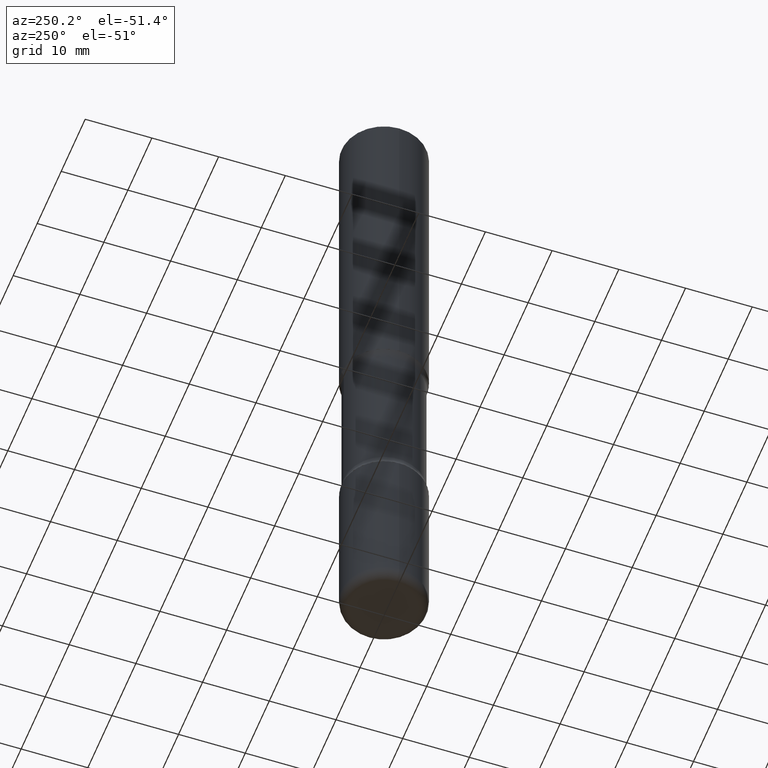
[diagram: clean part render]
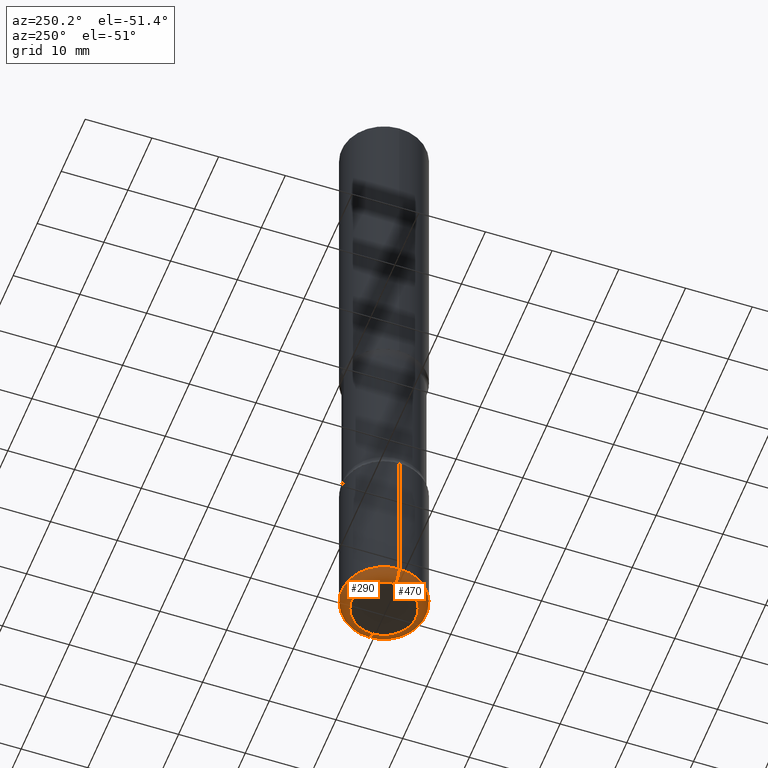
[diagram: same view with one multi-face feature highlighted, each face labeled with its STEP entity id]
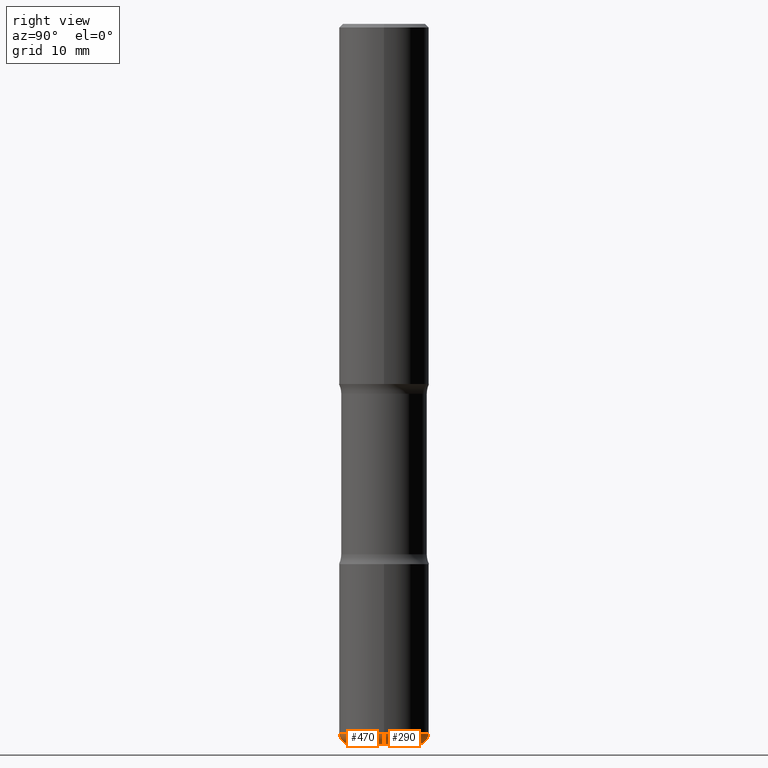
[diagram: same view with one multi-face feature highlighted, each face labeled with its STEP entity id]
A machine part, auxiliary view. The highlighted faces form ONE feature: a constant-radius fillet chain: 2 tangent blend faces with common blend radius 1.524 mm. The faces share edges in the B-rep.
A second angle (right view) of the same feature is appended — it is thin or edge-on in the first view.
Their STEP definitions:
[1] entity #470 (Torus):
#4 = AXIS2_PLACEMENT_3D ( 'NONE', #512, #84, #30 ) ;
#8 = DIRECTION ( 'NONE',  ( -2.445468806185136597E-29, 3.491481338843145583E-15, 1.000000000000000000 ) ) ;
#14 = DIRECTION ( 'NONE',  ( 7.105427357601001859E-15, 1.000000000000000000, -3.491481338843145583E-15 ) ) ;
#30 = DIRECTION ( 'NONE',  ( 1.000000000000000000, -6.982962677686269077E-15, 4.883557194083113462E-29 ) ) ;
#32 = VERTEX_POINT ( 'NONE', #94 ) ;
#54 = DIRECTION ( 'NONE',  ( -6.982962677686266711E-15, -1.000000000000000000, 3.491481338843145583E-15 ) ) ;
#64 = AXIS2_PLACEMENT_3D ( 'NONE', #394, #8, #92 ) ;
#78 = VERTEX_POINT ( 'NONE', #196 ) ;
#84 = DIRECTION ( 'NONE',  ( -2.445468806185136597E-29, 3.491481338843145583E-15, 1.000000000000000000 ) ) ;
#92 = DIRECTION ( 'NONE',  ( 1.000000000000000000, -6.982962677686269077E-15, 0.000000000000000000 ) ) ;
#94 = CARTESIAN_POINT ( 'NONE',  ( -0.2500000000000003331, -1.198007963564174197E-14, -3.939999999999999947 ) ) ;
#98 = CARTESIAN_POINT ( 'NONE',  ( -0.1900000000000003630, -1.229798689653506559E-14, -4.000000000000000000 ) ) ;
#105 = EDGE_CURVE ( 'NONE', #555, #522, #362, .T. ) ;
#112 = CARTESIAN_POINT ( 'NONE',  ( 9.635147096369438236E-29, -1.375643647504199401E-14, -3.939999999999999947 ) ) ;
#117 = CIRCLE ( 'NONE', #325, 0.05999999999999997696 ) ;
#155 = EDGE_CURVE ( 'NONE', #522, #78, #557, .T. ) ;
#158 = DIRECTION ( 'NONE',  ( 1.000000000000000000, -6.982962677686267499E-15, 0.000000000000000000 ) ) ;
#162 = EDGE_CURVE ( 'NONE', #555, #32, #117, .T. ) ;
#181 = CARTESIAN_POINT ( 'NONE',  ( 0.1900000000000003630, -1.508319938380238721E-14, -3.939999999999999947 ) ) ;
#185 = DIRECTION ( 'NONE',  ( -1.000000000000000000, 7.105427357600993970E-15, 0.000000000000000000 ) ) ;
#196 = CARTESIAN_POINT ( 'NONE',  ( 0.2500000000000003331, -1.550217714446356385E-14, -3.939999999999999947 ) ) ;
#205 = CIRCLE ( 'NONE', #382, 0.2500000000000003886 ) ;
#226 = CARTESIAN_POINT ( 'NONE',  ( 0.1900000000000003630, -1.529268826413297711E-14, -4.000000000000000000 ) ) ;
#276 = CARTESIAN_POINT ( 'NONE',  ( -0.1900000000000003630, -1.240640527709780088E-14, -3.939999999999999947 ) ) ;
#325 = AXIS2_PLACEMENT_3D ( 'NONE', #276, #14, #185 ) ;
#340 = ORIENTED_EDGE ( 'NONE', *, *, #379, .F. ) ;
#355 = DIRECTION ( 'NONE',  ( 1.000000000000000000, -6.982962677686270655E-15, 0.000000000000000000 ) ) ;
#362 = CIRCLE ( 'NONE', #64, 0.1900000000000003630 ) ;
#376 = AXIS2_PLACEMENT_3D ( 'NONE', #181, #54, #355 ) ;
#379 = EDGE_CURVE ( 'NONE', #32, #78, #205, .T. ) ;
#382 = AXIS2_PLACEMENT_3D ( 'NONE', #112, #543, #158 ) ;
#394 = CARTESIAN_POINT ( 'NONE',  ( 9.781875224740546387E-29, -1.396592535537258233E-14, -4.000000000000000000 ) ) ;
#408 = ORIENTED_EDGE ( 'NONE', *, *, #162, .F. ) ;
#426 = ORIENTED_EDGE ( 'NONE', *, *, #105, .T. ) ;
#470 = ADVANCED_FACE ( 'NONE', ( #558 ), #529, .T. ) ;
#511 = ORIENTED_EDGE ( 'NONE', *, *, #155, .T. ) ;
#512 = CARTESIAN_POINT ( 'NONE',  ( 9.635147096369438236E-29, -1.375643647504199401E-14, -3.939999999999999947 ) ) ;
#522 = VERTEX_POINT ( 'NONE', #226 ) ;
#528 = EDGE_LOOP ( 'NONE', ( #408, #426, #511, #340 ) ) ;
#529 = TOROIDAL_SURFACE ( 'NONE', #4, 0.1900000000000003630, 0.05999999999999995615 ) ;
#543 = DIRECTION ( 'NONE',  ( -2.445468806185136597E-29, 3.491481338843145583E-15, 1.000000000000000000 ) ) ;
#555 = VERTEX_POINT ( 'NONE', #98 ) ;
#557 = CIRCLE ( 'NONE', #376, 0.05999999999999997696 ) ;
#558 = FACE_OUTER_BOUND ( 'NONE', #528, .T. ) ;
[2] entity #290 (Torus):
#14 = DIRECTION ( 'NONE',  ( 7.105427357601001859E-15, 1.000000000000000000, -3.491481338843145583E-15 ) ) ;
#32 = VERTEX_POINT ( 'NONE', #94 ) ;
#54 = DIRECTION ( 'NONE',  ( -6.982962677686266711E-15, -1.000000000000000000, 3.491481338843145583E-15 ) ) ;
#71 = CIRCLE ( 'NONE', #272, 0.2500000000000003886 ) ;
#78 = VERTEX_POINT ( 'NONE', #196 ) ;
#94 = CARTESIAN_POINT ( 'NONE',  ( -0.2500000000000003331, -1.198007963564174197E-14, -3.939999999999999947 ) ) ;
#98 = CARTESIAN_POINT ( 'NONE',  ( -0.1900000000000003630, -1.229798689653506559E-14, -4.000000000000000000 ) ) ;
#103 = ORIENTED_EDGE ( 'NONE', *, *, #429, .F. ) ;
#117 = CIRCLE ( 'NONE', #325, 0.05999999999999997696 ) ;
#118 = DIRECTION ( 'NONE',  ( -2.445468806185136597E-29, 3.491481338843145583E-15, 1.000000000000000000 ) ) ;
#146 = DIRECTION ( 'NONE',  ( -2.445468806185136597E-29, 3.491481338843145583E-15, 1.000000000000000000 ) ) ;
#155 = EDGE_CURVE ( 'NONE', #522, #78, #557, .T. ) ;
#162 = EDGE_CURVE ( 'NONE', #555, #32, #117, .T. ) ;
#181 = CARTESIAN_POINT ( 'NONE',  ( 0.1900000000000003630, -1.508319938380238721E-14, -3.939999999999999947 ) ) ;
#185 = DIRECTION ( 'NONE',  ( -1.000000000000000000, 7.105427357600993970E-15, 0.000000000000000000 ) ) ;
#195 = DIRECTION ( 'NONE',  ( 1.000000000000000000, -6.982962677686269077E-15, 0.000000000000000000 ) ) ;
#196 = CARTESIAN_POINT ( 'NONE',  ( 0.2500000000000003331, -1.550217714446356385E-14, -3.939999999999999947 ) ) ;
#200 = DIRECTION ( 'NONE',  ( 1.000000000000000000, -6.982962677686269077E-15, 4.883557194083113462E-29 ) ) ;
#226 = CARTESIAN_POINT ( 'NONE',  ( 0.1900000000000003630, -1.529268826413297711E-14, -4.000000000000000000 ) ) ;
#272 = AXIS2_PLACEMENT_3D ( 'NONE', #378, #300, #461 ) ;
#276 = CARTESIAN_POINT ( 'NONE',  ( -0.1900000000000003630, -1.240640527709780088E-14, -3.939999999999999947 ) ) ;
#290 = ADVANCED_FACE ( 'NONE', ( #534 ), #463, .T. ) ;
#300 = DIRECTION ( 'NONE',  ( -2.445468806185136597E-29, 3.491481338843145583E-15, 1.000000000000000000 ) ) ;
#321 = ORIENTED_EDGE ( 'NONE', *, *, #335, .T. ) ;
#325 = AXIS2_PLACEMENT_3D ( 'NONE', #276, #14, #185 ) ;
#335 = EDGE_CURVE ( 'NONE', #522, #555, #349, .T. ) ;
#338 = EDGE_LOOP ( 'NONE', ( #321, #397, #103, #509 ) ) ;
#349 = CIRCLE ( 'NONE', #556, 0.1900000000000003630 ) ;
#355 = DIRECTION ( 'NONE',  ( 1.000000000000000000, -6.982962677686270655E-15, 0.000000000000000000 ) ) ;
#376 = AXIS2_PLACEMENT_3D ( 'NONE', #181, #54, #355 ) ;
#378 = CARTESIAN_POINT ( 'NONE',  ( 9.635147096369438236E-29, -1.375643647504199401E-14, -3.939999999999999947 ) ) ;
#397 = ORIENTED_EDGE ( 'NONE', *, *, #162, .T. ) ;
#404 = CARTESIAN_POINT ( 'NONE',  ( 9.635147096369438236E-29, -1.375643647504199401E-14, -3.939999999999999947 ) ) ;
#409 = CARTESIAN_POINT ( 'NONE',  ( 9.781875224740546387E-29, -1.396592535537258233E-14, -4.000000000000000000 ) ) ;
#429 = EDGE_CURVE ( 'NONE', #78, #32, #71, .T. ) ;
#461 = DIRECTION ( 'NONE',  ( 1.000000000000000000, -6.982962677686267499E-15, 0.000000000000000000 ) ) ;
#463 = TOROIDAL_SURFACE ( 'NONE', #499, 0.1900000000000003630, 0.05999999999999995615 ) ;
#499 = AXIS2_PLACEMENT_3D ( 'NONE', #404, #146, #200 ) ;
#509 = ORIENTED_EDGE ( 'NONE', *, *, #155, .F. ) ;
#522 = VERTEX_POINT ( 'NONE', #226 ) ;
#534 = FACE_OUTER_BOUND ( 'NONE', #338, .T. ) ;
#555 = VERTEX_POINT ( 'NONE', #98 ) ;
#556 = AXIS2_PLACEMENT_3D ( 'NONE', #409, #118, #195 ) ;
#557 = CIRCLE ( 'NONE', #376, 0.05999999999999997696 ) ;